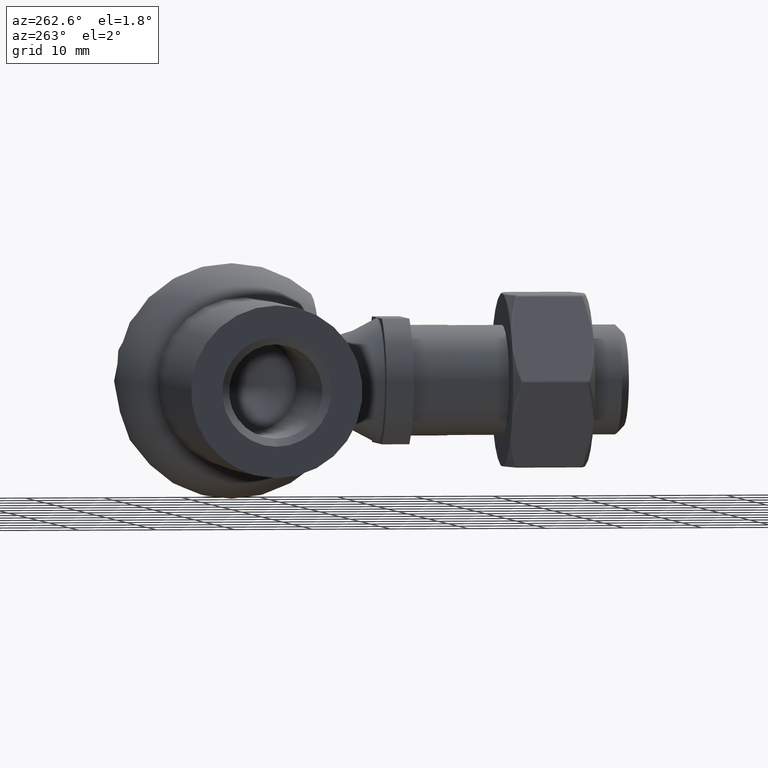
[diagram: clean part render]
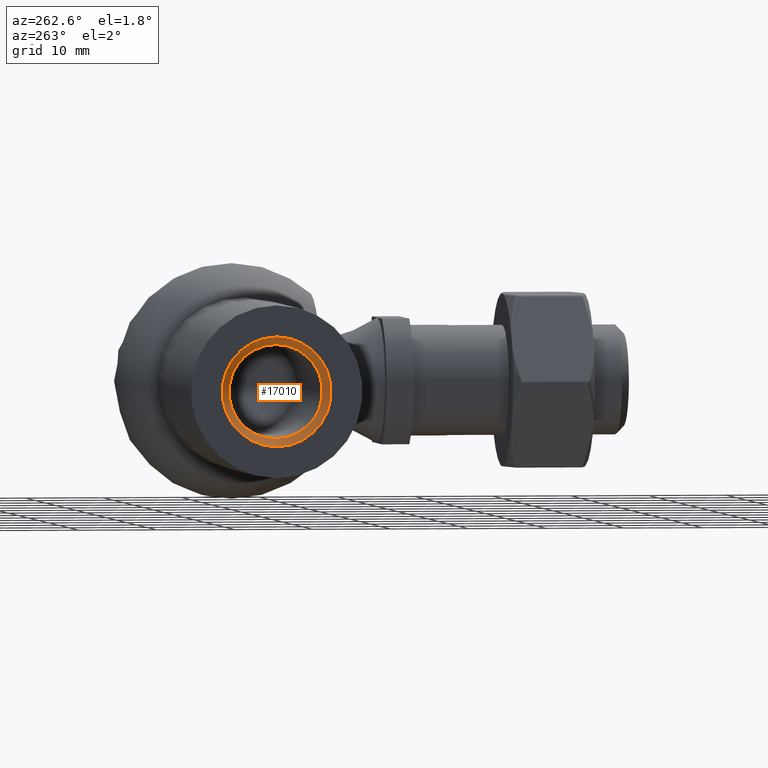
[diagram: same view with one face highlighted and labeled with its STEP entity id]
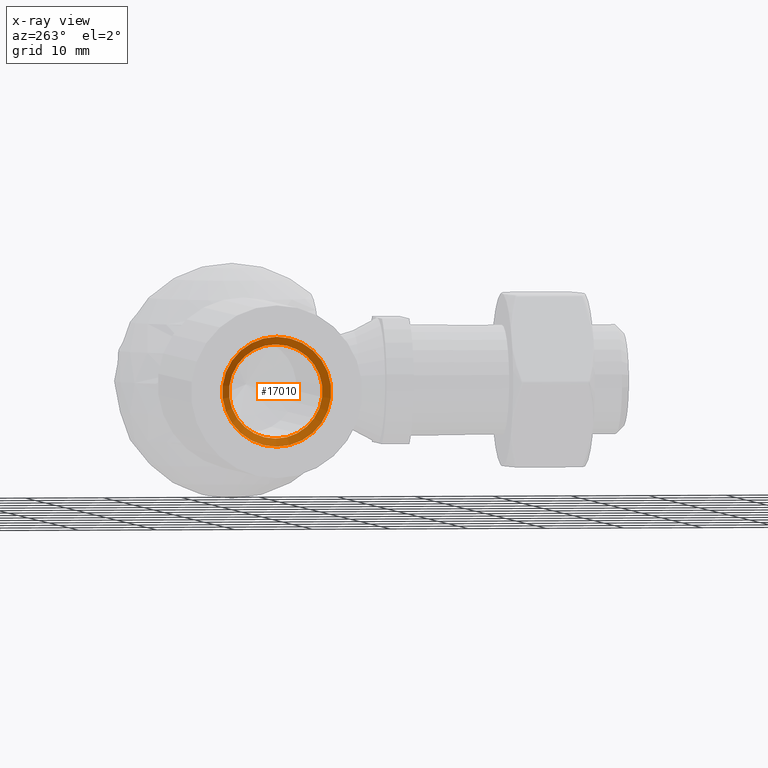
[diagram: x-ray of the same camera — body ghosted, the highlighted face saturated]
A machine part, auxiliary view. The second image highlights one B-rep face of the part: STEP entity #17010.
The next image is the same camera in x-ray: the body ghosted, the highlighted face saturated — about 0% of this face is hidden behind the body in this view.
In plain terms, the highlighted conical surface has half-angle 45 deg.
Its self-contained STEP definition (entity closure, byte-faithful):
#593 = VERTEX_POINT ( 'NONE', #17658 ) ;
#1057 = VERTEX_POINT ( 'NONE', #17934 ) ;
#1378 = DIRECTION ( 'NONE',  ( 0.000000000000000000, 0.000000000000000000, 1.000000000000000000 ) ) ;
#3241 = AXIS2_PLACEMENT_3D ( 'NONE', #14174, #5062, #15712 ) ;
#3613 = AXIS2_PLACEMENT_3D ( 'NONE', #10489, #14930, #1378 ) ;
#4183 = CIRCLE ( 'NONE', #3241, 6.999999999999992006 ) ;
#4210 = CIRCLE ( 'NONE', #13424, 5.999999999999990230 ) ;
#5062 = DIRECTION ( 'NONE',  ( 1.000000000000000000, 0.000000000000000000, 0.000000000000000000 ) ) ;
#8828 = EDGE_LOOP ( 'NONE', ( #13225 ) ) ;
#8829 = EDGE_LOOP ( 'NONE', ( #16399 ) ) ;
#10145 = CONICAL_SURFACE ( 'NONE', #3613, 5.999999999999990230, 0.7853981633974522758 ) ;
#10489 = CARTESIAN_POINT ( 'NONE',  ( -43.50000000000000711, 0.000000000000000000, 0.000000000000000000 ) ) ;
#10621 = FACE_OUTER_BOUND ( 'NONE', #8829, .T. ) ;
#13225 = ORIENTED_EDGE ( 'NONE', *, *, #17744, .F. ) ;
#13424 = AXIS2_PLACEMENT_3D ( 'NONE', #13783, #15300, #15370 ) ;
#13783 = CARTESIAN_POINT ( 'NONE',  ( -43.50000000000000711, 0.000000000000000000, 0.000000000000000000 ) ) ;
#14174 = CARTESIAN_POINT ( 'NONE',  ( -44.50000000000000000, 0.000000000000000000, 0.000000000000000000 ) ) ;
#14930 = DIRECTION ( 'NONE',  ( -1.000000000000000000, 0.000000000000000000, 0.000000000000000000 ) ) ;
#15300 = DIRECTION ( 'NONE',  ( -1.000000000000000000, 0.000000000000000000, 0.000000000000000000 ) ) ;
#15370 = DIRECTION ( 'NONE',  ( 0.000000000000000000, 0.000000000000000000, -1.000000000000000000 ) ) ;
#15712 = DIRECTION ( 'NONE',  ( 0.000000000000000000, 0.000000000000000000, -1.000000000000000000 ) ) ;
#16399 = ORIENTED_EDGE ( 'NONE', *, *, #16581, .F. ) ;
#16581 = EDGE_CURVE ( 'NONE', #1057, #1057, #4183, .T. ) ;
#17010 = ADVANCED_FACE ( 'NONE', ( #10621, #19663 ), #10145, .F. ) ;
#17658 = CARTESIAN_POINT ( 'NONE',  ( -43.50000000000000711, 0.000000000000000000, -5.999999999999990230 ) ) ;
#17744 = EDGE_CURVE ( 'NONE', #593, #593, #4210, .T. ) ;
#17934 = CARTESIAN_POINT ( 'NONE',  ( -44.50000000000000000, 0.000000000000000000, -6.999999999999992006 ) ) ;
#19663 = FACE_BOUND ( 'NONE', #8828, .T. ) ;